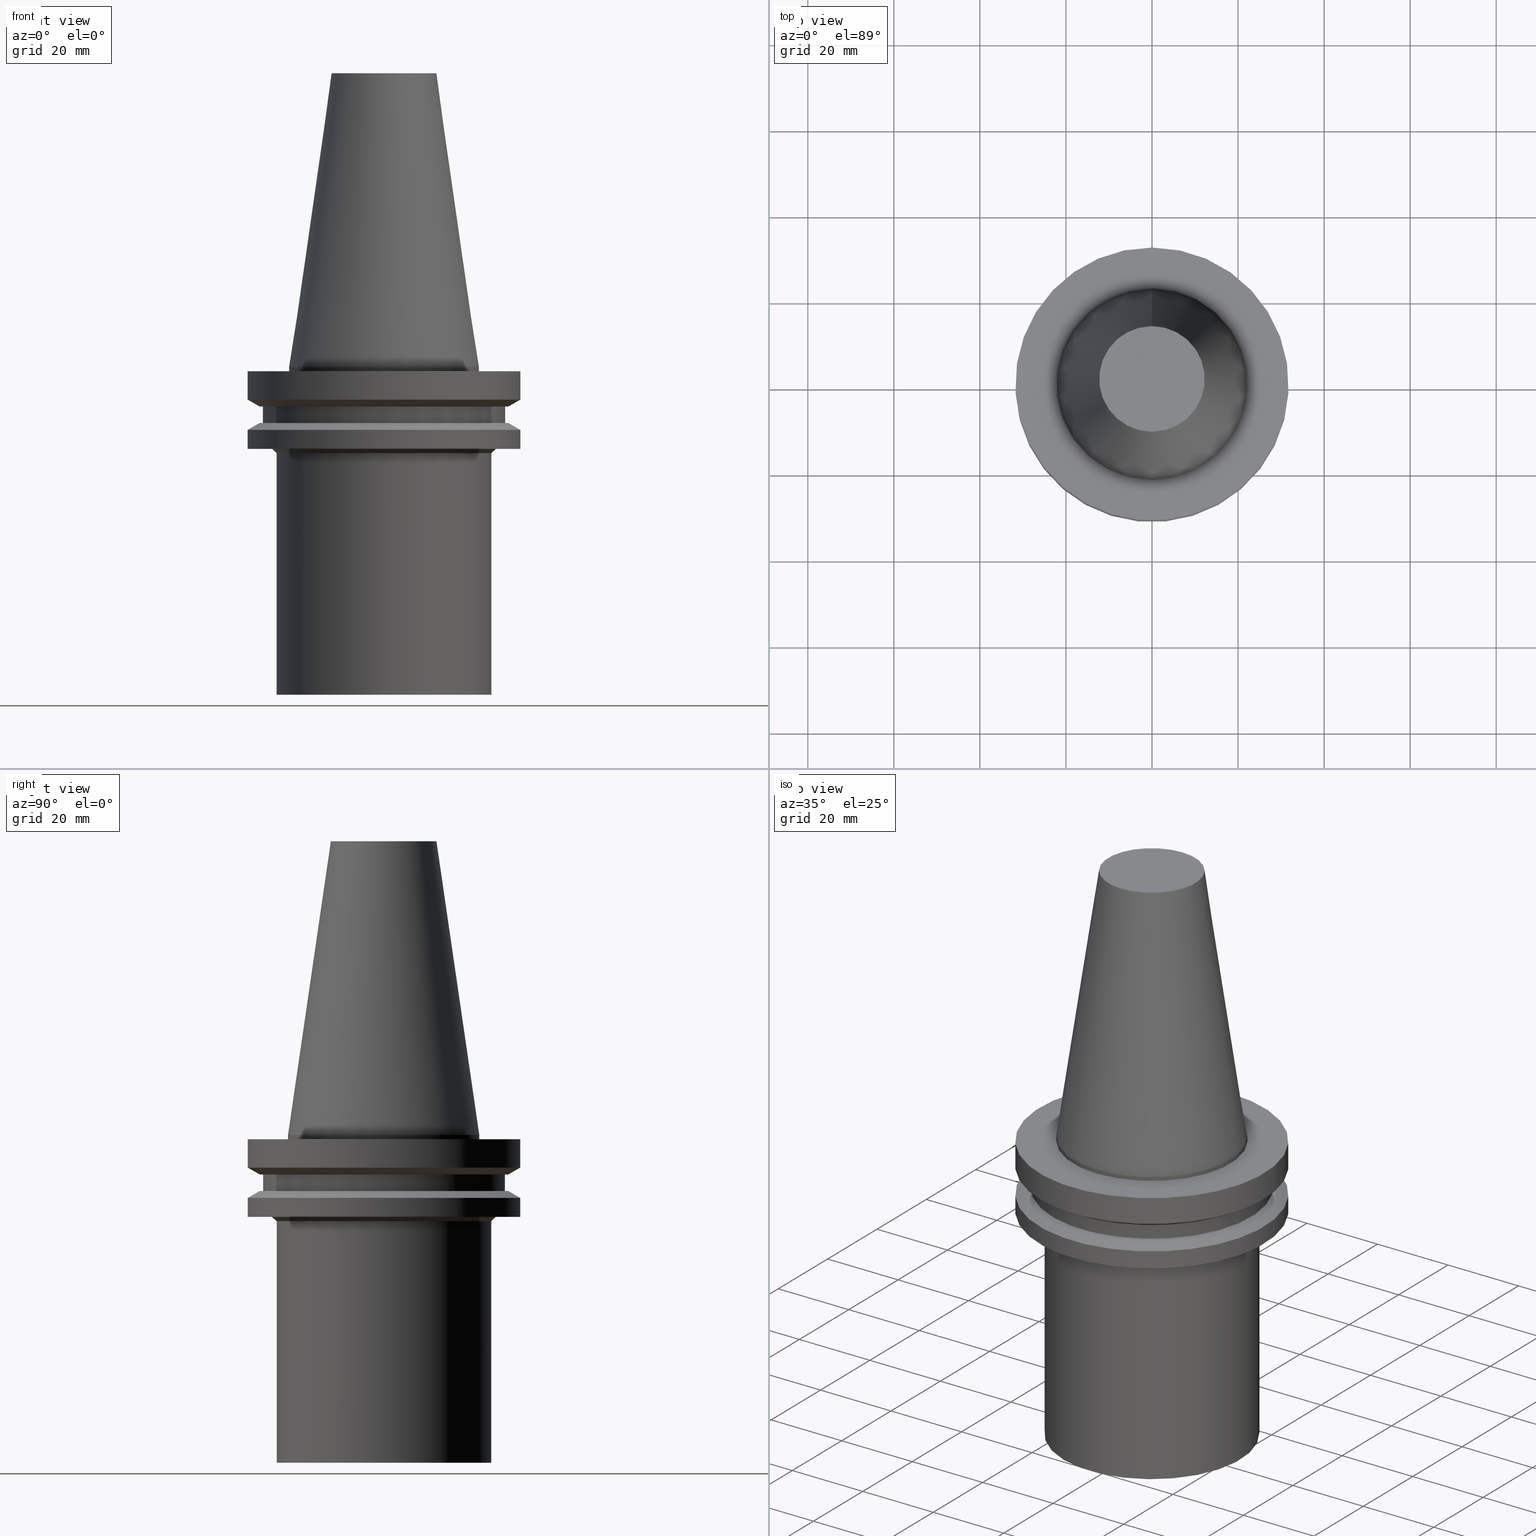
[diagram: canonical four-view strip — front | top / right | iso, engineering-drawing reading convention]
A machine part, canonical four-view strip (front | top / right | iso — engineering-drawing reading convention). The complete STEP part file that produces these views, byte-faithful:
ISO-10303-21;
HEADER;
FILE_DESCRIPTION((''),'1');
FILE_NAME('V:/90_\X2\53D65F9730C730FC30BF\X0\/00_\X2\6DE18DEF30C730FC30BF\X0\/ALL/BCV-BKUS\X2\FF76FF80FF9BFF78FF9E752852A05DE556F3\X0\201801/BCV40Y-CAPTO/BCV40Y-C5-3.stp','2018-02-01T01:54:02',(''),(''),'Spatial Interop R21 SP3','Kubotek KeyCreator 2011 V10.0.2 (22737)',' ');
FILE_SCHEMA(('automotive_design'));
ENDSEC;
DATA;
#1=MECHANICAL_DESIGN_GEOMETRIC_PRESENTATION_REPRESENTATION(' ',(#10,#11,#12,#13,#14,#15,#16,#17,#18,#19,#20,#21,#22,#23,#24,#25,#26,#27,#28,#29,#30,#31,#32,#33,#34,#35,#36,#37,#38,#39),#6);
#2=PRODUCT_DEFINITION_CONTEXT('',#40,'design');
#3=APPLICATION_PROTOCOL_DEFINITION('INTERNATIONAL STANDARD','automotive_design',1994,#40);
#4=PRODUCT_CATEGORY_RELATIONSHIP('NONE','NONE',#41,#42);
#5=SHAPE_DEFINITION_REPRESENTATION(#43,#44);
#6= (GEOMETRIC_REPRESENTATION_CONTEXT(3)GLOBAL_UNCERTAINTY_ASSIGNED_CONTEXT((#47))GLOBAL_UNIT_ASSIGNED_CONTEXT((#49,#50,#51))REPRESENTATION_CONTEXT('NONE','WORKSPACE'));
#10=STYLED_ITEM('',(#53),#54);
#11=STYLED_ITEM('',(#55),#56);
#12=STYLED_ITEM('',(#57),#58);
#13=STYLED_ITEM('',(#59,#60),#61);
#14=STYLED_ITEM('',(#62,#63),#64);
#15=STYLED_ITEM('',(#65,#66),#67);
#16=STYLED_ITEM('',(#68),#69);
#17=STYLED_ITEM('',(#70),#71);
#18=STYLED_ITEM('',(#72,#73),#74);
#19=STYLED_ITEM('',(#75,#76),#77);
#20=STYLED_ITEM('',(#78),#79);
#21=STYLED_ITEM('',(#80,#81),#82);
#22=STYLED_ITEM('',(#83,#84),#85);
#23=STYLED_ITEM('',(#86,#87),#88);
#24=STYLED_ITEM('',(#89,#90),#91);
#25=STYLED_ITEM('',(#92,#93),#94);
#26=STYLED_ITEM('',(#95),#96);
#27=STYLED_ITEM('',(#97,#98),#99);
#28=STYLED_ITEM('',(#100),#101);
#29=STYLED_ITEM('',(#102,#103),#104);
#30=STYLED_ITEM('',(#105,#106),#107);
#31=STYLED_ITEM('',(#108,#109),#110);
#32=STYLED_ITEM('',(#111),#112);
#33=STYLED_ITEM('',(#113),#114);
#34=STYLED_ITEM('',(#115),#116);
#35=STYLED_ITEM('',(#117,#118),#119);
#36=STYLED_ITEM('',(#120),#121);
#37=STYLED_ITEM('',(#122),#123);
#38=STYLED_ITEM('',(#124),#125);
#39=STYLED_ITEM('',(#126,#127),#128);
#40=APPLICATION_CONTEXT(' ');
#41=PRODUCT_CATEGORY('part','NONE');
#42=PRODUCT_RELATED_PRODUCT_CATEGORY('detail',' ',(#129));
#43=PRODUCT_DEFINITION_SHAPE('NONE','NONE',#130);
#44=ADVANCED_BREP_SHAPE_REPRESENTATION('Unnamed[1]',(#91,#131),#6);
#47=UNCERTAINTY_MEASURE_WITH_UNIT(LENGTH_MEASURE(1.0E-006),#49,'','');
#49= (CONVERSION_BASED_UNIT('MILLIMETRE',#134)LENGTH_UNIT()NAMED_UNIT(#137));
#50= (NAMED_UNIT(#139)PLANE_ANGLE_UNIT()SI_UNIT($,.RADIAN.));
#51= (NAMED_UNIT(#139)SOLID_ANGLE_UNIT()SI_UNIT($,.STERADIAN.));
#53=PRESENTATION_STYLE_ASSIGNMENT((#145));
#54=EDGE_CURVE('Unnamed[1]',#146,#146,#147,.T.);
#55=PRESENTATION_STYLE_ASSIGNMENT((#148));
#56=EDGE_CURVE('Unnamed[1]',#149,#149,#150,.T.);
#57=PRESENTATION_STYLE_ASSIGNMENT((#151));
#58=EDGE_CURVE('Unnamed[1]',#152,#152,#153,.T.);
#59=PRESENTATION_STYLE_ASSIGNMENT((#154));
#60=PRESENTATION_STYLE_ASSIGNMENT((#155));
#61=ADVANCED_FACE('Unnamed[1]',(#156,#157),#158,.T.);
#62=PRESENTATION_STYLE_ASSIGNMENT((#159));
#63=PRESENTATION_STYLE_ASSIGNMENT((#160));
#64=ADVANCED_FACE('Unnamed[1]',(#161,#162),#163,.T.);
#65=PRESENTATION_STYLE_ASSIGNMENT((#164));
#66=PRESENTATION_STYLE_ASSIGNMENT((#165));
#67=ADVANCED_FACE('Unnamed[1]',(#166,#167),#168,.T.);
#68=PRESENTATION_STYLE_ASSIGNMENT((#169));
#69=EDGE_CURVE('Unnamed[1]',#170,#170,#171,.T.);
#70=PRESENTATION_STYLE_ASSIGNMENT((#172));
#71=EDGE_CURVE('Unnamed[1]',#173,#173,#174,.T.);
#72=PRESENTATION_STYLE_ASSIGNMENT((#175));
#73=PRESENTATION_STYLE_ASSIGNMENT((#176));
#74=ADVANCED_FACE('Unnamed[1]',(#177,#178),#179,.T.);
#75=PRESENTATION_STYLE_ASSIGNMENT((#180));
#76=PRESENTATION_STYLE_ASSIGNMENT((#181));
#77=ADVANCED_FACE('Unnamed[1]',(#182),#183,.T.);
#78=PRESENTATION_STYLE_ASSIGNMENT((#184));
#79=EDGE_CURVE('Unnamed[1]',#185,#185,#186,.T.);
#80=PRESENTATION_STYLE_ASSIGNMENT((#187));
#81=PRESENTATION_STYLE_ASSIGNMENT((#188));
#82=ADVANCED_FACE('Unnamed[1]',(#189,#190),#191,.T.);
#83=PRESENTATION_STYLE_ASSIGNMENT((#192));
#84=PRESENTATION_STYLE_ASSIGNMENT((#193));
#85=ADVANCED_FACE('Unnamed[1]',(#194,#195),#196,.T.);
#86=PRESENTATION_STYLE_ASSIGNMENT((#197));
#87=PRESENTATION_STYLE_ASSIGNMENT((#198));
#88=ADVANCED_FACE('Unnamed[1]',(#199,#200),#201,.T.);
#89=PRESENTATION_STYLE_ASSIGNMENT((#202));
#90=PRESENTATION_STYLE_ASSIGNMENT((#203));
#91=MANIFOLD_SOLID_BREP('Unnamed[1]',#204);
#92=PRESENTATION_STYLE_ASSIGNMENT((#205));
#93=PRESENTATION_STYLE_ASSIGNMENT((#206));
#94=ADVANCED_FACE('Unnamed[1]',(#207,#208),#209,.T.);
#95=PRESENTATION_STYLE_ASSIGNMENT((#210));
#96=EDGE_CURVE('Unnamed[1]',#211,#211,#212,.T.);
#97=PRESENTATION_STYLE_ASSIGNMENT((#213));
#98=PRESENTATION_STYLE_ASSIGNMENT((#214));
#99=ADVANCED_FACE('Unnamed[1]',(#215,#216),#217,.T.);
#100=PRESENTATION_STYLE_ASSIGNMENT((#218));
#101=EDGE_CURVE('Unnamed[1]',#219,#219,#220,.T.);
#102=PRESENTATION_STYLE_ASSIGNMENT((#221));
#103=PRESENTATION_STYLE_ASSIGNMENT((#222));
#104=ADVANCED_FACE('Unnamed[1]',(#223,#224),#225,.T.);
#105=PRESENTATION_STYLE_ASSIGNMENT((#226));
#106=PRESENTATION_STYLE_ASSIGNMENT((#227));
#107=ADVANCED_FACE('Unnamed[1]',(#228),#229,.T.);
#108=PRESENTATION_STYLE_ASSIGNMENT((#230));
#109=PRESENTATION_STYLE_ASSIGNMENT((#231));
#110=ADVANCED_FACE('Unnamed[1]',(#232,#233),#234,.T.);
#111=PRESENTATION_STYLE_ASSIGNMENT((#235));
#112=EDGE_CURVE('Unnamed[1]',#236,#236,#237,.T.);
#113=PRESENTATION_STYLE_ASSIGNMENT((#238));
#114=EDGE_CURVE('Unnamed[1]',#239,#239,#240,.T.);
#115=PRESENTATION_STYLE_ASSIGNMENT((#241));
#116=EDGE_CURVE('Unnamed[1]',#242,#242,#243,.T.);
#117=PRESENTATION_STYLE_ASSIGNMENT((#244));
#118=PRESENTATION_STYLE_ASSIGNMENT((#245));
#119=ADVANCED_FACE('Unnamed[1]',(#246,#247),#248,.T.);
#120=PRESENTATION_STYLE_ASSIGNMENT((#249));
#121=EDGE_CURVE('Unnamed[1]',#250,#250,#251,.T.);
#122=PRESENTATION_STYLE_ASSIGNMENT((#252));
#123=EDGE_CURVE('Unnamed[1]',#253,#253,#254,.T.);
#124=PRESENTATION_STYLE_ASSIGNMENT((#255));
#125=EDGE_CURVE('Unnamed[1]',#256,#256,#257,.T.);
#126=PRESENTATION_STYLE_ASSIGNMENT((#258));
#127=PRESENTATION_STYLE_ASSIGNMENT((#259));
#128=ADVANCED_FACE('Unnamed[1]',(#260,#261),#262,.T.);
#129=PRODUCT('Unnamed[1]','Unnamed[1]','PART-Unnamed[1]-DESC',(#263));
#130=PRODUCT_DEFINITION('NONE','NONE',#264,#2);
#131=AXIS2_PLACEMENT_3D('',#265,#266,#267);
#134=LENGTH_MEASURE_WITH_UNIT(LENGTH_MEASURE(1.0),#268);
#137=DIMENSIONAL_EXPONENTS(1.0,0.0,0.0,0.0,0.0,0.0,0.0);
#139=DIMENSIONAL_EXPONENTS(0.0,0.0,0.0,0.0,0.0,0.0,0.0);
#145=CURVE_STYLE('',#269,POSITIVE_LENGTH_MEASURE(1000.0),#270);
#146=VERTEX_POINT('',#271);
#147=CIRCLE('',#272,28.1799999999999);
#148=CURVE_STYLE('',#273,POSITIVE_LENGTH_MEASURE(1000.0),#274);
#149=VERTEX_POINT('',#275);
#150=CIRCLE('',#276,31.7499999999999);
#151=CURVE_STYLE('',#277,POSITIVE_LENGTH_MEASURE(1000.0),#278);
#152=VERTEX_POINT('',#279);
#153=CIRCLE('',#280,22.225);
#154=SURFACE_STYLE_USAGE(.BOTH.,#281);
#155=CURVE_STYLE('',#282,POSITIVE_LENGTH_MEASURE(1000.0),#283);
#156=FACE_BOUND('',#284,.T.);
#157=FACE_BOUND('',#285,.T.);
#158=CYLINDRICAL_SURFACE('',#286,28.1799999999999);
#159=SURFACE_STYLE_USAGE(.BOTH.,#287);
#160=CURVE_STYLE('',#288,POSITIVE_LENGTH_MEASURE(1000.0),#289);
#161=FACE_BOUND('',#290,.T.);
#162=FACE_BOUND('',#291,.T.);
#163=CONICAL_SURFACE('',#292,30.3587792269259,1.0471975511966);
#164=SURFACE_STYLE_USAGE(.BOTH.,#293);
#165=CURVE_STYLE('',#294,POSITIVE_LENGTH_MEASURE(1000.0),#295);
#166=FACE_BOUND('',#296,.T.);
#167=FACE_BOUND('',#297,.T.);
#168=CYLINDRICAL_SURFACE('',#298,25.0);
#169=CURVE_STYLE('',#299,POSITIVE_LENGTH_MEASURE(1000.0),#300);
#170=VERTEX_POINT('',#301);
#171=CIRCLE('',#302,31.7499999999999);
#172=CURVE_STYLE('',#303,POSITIVE_LENGTH_MEASURE(1000.0),#304);
#173=VERTEX_POINT('',#305);
#174=CIRCLE('',#306,26.0);
#175=SURFACE_STYLE_USAGE(.BOTH.,#307);
#176=CURVE_STYLE('',#308,POSITIVE_LENGTH_MEASURE(1000.0),#309);
#177=FACE_BOUND('',#310,.T.);
#178=FACE_OUTER_BOUND('',#311,.T.);
#179=PLANE('',#312);
#180=SURFACE_STYLE_USAGE(.BOTH.,#313);
#181=CURVE_STYLE('',#314,POSITIVE_LENGTH_MEASURE(1000.0),#315);
#182=FACE_OUTER_BOUND('',#316,.T.);
#183=PLANE('',#317);
#184=CURVE_STYLE('',#318,POSITIVE_LENGTH_MEASURE(1000.0),#319);
#185=VERTEX_POINT('',#320);
#186=CIRCLE('',#321,28.1799999999999);
#187=SURFACE_STYLE_USAGE(.BOTH.,#322);
#188=CURVE_STYLE('',#323,POSITIVE_LENGTH_MEASURE(1000.0),#324);
#189=FACE_BOUND('',#325,.T.);
#190=FACE_BOUND('',#326,.T.);
#191=CONICAL_SURFACE('',#327,17.2484375,0.144812498238938);
#192=SURFACE_STYLE_USAGE(.BOTH.,#328);
#193=CURVE_STYLE('',#329,POSITIVE_LENGTH_MEASURE(1000.0),#330);
#194=FACE_BOUND('',#331,.T.);
#195=FACE_OUTER_BOUND('',#332,.T.);
#196=PLANE('',#333);
#197=SURFACE_STYLE_USAGE(.BOTH.,#334);
#198=CURVE_STYLE('',#335,POSITIVE_LENGTH_MEASURE(1000.0),#336);
#199=FACE_OUTER_BOUND('',#337,.T.);
#200=FACE_BOUND('',#338,.T.);
#201=PLANE('',#339);
#202=SURFACE_STYLE_USAGE(.BOTH.,#340);
#203=CURVE_STYLE('',#341,POSITIVE_LENGTH_MEASURE(1000.0),#342);
#204=CLOSED_SHELL('',(#107,#82,#110,#88,#104,#119,#74,#61,#99,#64,#94,#85,#128,#67,#77));
#205=SURFACE_STYLE_USAGE(.BOTH.,#343);
#206=CURVE_STYLE('',#344,POSITIVE_LENGTH_MEASURE(1000.0),#345);
#207=FACE_BOUND('',#346,.T.);
#208=FACE_BOUND('',#347,.T.);
#209=CYLINDRICAL_SURFACE('',#348,31.7499999999999);
#210=CURVE_STYLE('',#349,POSITIVE_LENGTH_MEASURE(1000.0),#350);
#211=VERTEX_POINT('',#351);
#212=CIRCLE('',#352,28.9675584538521);
#213=SURFACE_STYLE_USAGE(.BOTH.,#353);
#214=CURVE_STYLE('',#354,POSITIVE_LENGTH_MEASURE(1000.0),#355);
#215=FACE_OUTER_BOUND('',#356,.T.);
#216=FACE_BOUND('',#357,.T.);
#217=PLANE('',#358);
#218=CURVE_STYLE('',#359,POSITIVE_LENGTH_MEASURE(1000.0),#360);
#219=VERTEX_POINT('',#361);
#220=CIRCLE('',#362,12.271875);
#221=SURFACE_STYLE_USAGE(.BOTH.,#363);
#222=CURVE_STYLE('',#364,POSITIVE_LENGTH_MEASURE(1000.0),#365);
#223=FACE_BOUND('',#366,.T.);
#224=FACE_BOUND('',#367,.T.);
#225=CYLINDRICAL_SURFACE('',#368,31.7499999999999);
#226=SURFACE_STYLE_USAGE(.BOTH.,#369);
#227=CURVE_STYLE('',#370,POSITIVE_LENGTH_MEASURE(1000.0),#371);
#228=FACE_OUTER_BOUND('',#372,.T.);
#229=PLANE('',#373);
#230=SURFACE_STYLE_USAGE(.BOTH.,#374);
#231=CURVE_STYLE('',#375,POSITIVE_LENGTH_MEASURE(1000.0),#376);
#232=FACE_BOUND('',#377,.T.);
#233=FACE_BOUND('',#378,.T.);
#234=CYLINDRICAL_SURFACE('',#379,22.225);
#235=CURVE_STYLE('',#380,POSITIVE_LENGTH_MEASURE(1000.0),#381);
#236=VERTEX_POINT('',#382);
#237=CIRCLE('',#383,22.225);
#238=CURVE_STYLE('',#384,POSITIVE_LENGTH_MEASURE(1000.0),#385);
#239=VERTEX_POINT('',#386);
#240=CIRCLE('',#387,31.7499999999999);
#241=CURVE_STYLE('',#388,POSITIVE_LENGTH_MEASURE(1000.0),#389);
#242=VERTEX_POINT('',#390);
#243=CIRCLE('',#391,31.7499999999999);
#244=SURFACE_STYLE_USAGE(.BOTH.,#392);
#245=CURVE_STYLE('',#393,POSITIVE_LENGTH_MEASURE(1000.0),#394);
#246=FACE_BOUND('',#395,.T.);
#247=FACE_BOUND('',#396,.T.);
#248=CONICAL_SURFACE('',#397,30.358779226926,1.04719755119658);
#249=CURVE_STYLE('',#398,POSITIVE_LENGTH_MEASURE(1000.0),#399);
#250=VERTEX_POINT('',#400);
#251=CIRCLE('',#401,25.0);
#252=CURVE_STYLE('',#402,POSITIVE_LENGTH_MEASURE(1000.0),#403);
#253=VERTEX_POINT('',#404);
#254=CIRCLE('',#405,24.9999999999999);
#255=CURVE_STYLE('',#406,POSITIVE_LENGTH_MEASURE(1000.0),#407);
#256=VERTEX_POINT('',#408);
#257=CIRCLE('',#409,28.9675584538519);
#258=SURFACE_STYLE_USAGE(.BOTH.,#410);
#259=CURVE_STYLE('',#411,POSITIVE_LENGTH_MEASURE(1000.0),#412);
#260=FACE_BOUND('',#413,.T.);
#261=FACE_BOUND('',#414,.T.);
#262=CONICAL_SURFACE('',#415,25.5,0.785398163397442);
#263=PRODUCT_CONTEXT('',#40,'mechanical');
#264=PRODUCT_DEFINITION_FORMATION_WITH_SPECIFIED_SOURCE(' ','NONE',#129,.NOT_KNOWN.);
#265=CARTESIAN_POINT('',(0.0,0.0,0.0));
#266=DIRECTION('',(0.0,0.0,1.0));
#267=DIRECTION('',(1.0,0.0,0.0));
#268= (NAMED_UNIT(#137)LENGTH_UNIT()SI_UNIT(.MILLI.,.METRE.));
#269=DRAUGHTING_PRE_DEFINED_CURVE_FONT('continuous');
#270=COLOUR_RGB('',0.0,1.0,0.0);
#271=CARTESIAN_POINT('',(5.63337527607771E-016,28.18,-9.19999999999981));
#272=AXIS2_PLACEMENT_3D('',#417,#418,#419);
#273=DRAUGHTING_PRE_DEFINED_CURVE_FONT('continuous');
#274=COLOUR_RGB('',0.0,1.0,0.0);
#275=CARTESIAN_POINT('',(1.16647607618784E-015,31.7499999999999,-19.0499999999998));
#276=AXIS2_PLACEMENT_3D('',#420,#421,#422);
#277=DRAUGHTING_PRE_DEFINED_CURVE_FONT('continuous');
#278=COLOUR_RGB('',0.0,1.0,0.0);
#279=CARTESIAN_POINT('',(-7.23525537133772E-030,22.225,1.16408615232721E-013));
#280=AXIS2_PLACEMENT_3D('',#423,#424,#425);
#281=SURFACE_SIDE_STYLE('',(#426));
#282=DRAUGHTING_PRE_DEFINED_CURVE_FONT('continuous');
#283=COLOUR_RGB('',0.0,1.0,0.0);
#284=EDGE_LOOP('',(#427));
#285=EDGE_LOOP('',(#428));
#286=AXIS2_PLACEMENT_3D('',#429,#430,#431);
#287=SURFACE_SIDE_STYLE('',(#432));
#288=DRAUGHTING_PRE_DEFINED_CURVE_FONT('continuous');
#289=COLOUR_RGB('',0.0,1.0,0.0);
#290=EDGE_LOOP('',(#433));
#291=EDGE_LOOP('',(#434));
#292=AXIS2_PLACEMENT_3D('',#435,#436,#437);
#293=SURFACE_SIDE_STYLE('',(#438));
#294=DRAUGHTING_PRE_DEFINED_CURVE_FONT('continuous');
#295=COLOUR_RGB('',0.0,1.0,0.0);
#296=EDGE_LOOP('',(#439));
#297=EDGE_LOOP('',(#440));
#298=AXIS2_PLACEMENT_3D('',#441,#442,#443);
#299=DRAUGHTING_PRE_DEFINED_CURVE_FONT('continuous');
#300=COLOUR_RGB('',0.0,1.0,0.0);
#301=CARTESIAN_POINT('',(4.64971240706304E-016,31.7499999999999,-7.59355662432687));
#302=AXIS2_PLACEMENT_3D('',#444,#445,#446);
#303=DRAUGHTING_PRE_DEFINED_CURVE_FONT('continuous');
#304=COLOUR_RGB('',0.0,1.0,0.0);
#305=CARTESIAN_POINT('',(1.16647607618784E-015,26.0000000000001,-19.0499999999998));
#306=AXIS2_PLACEMENT_3D('',#447,#448,#449);
#307=SURFACE_SIDE_STYLE('',(#450));
#308=DRAUGHTING_PRE_DEFINED_CURVE_FONT('continuous');
#309=COLOUR_RGB('',0.0,1.0,0.0);
#310=EDGE_LOOP('',(#451));
#311=EDGE_LOOP('',(#452));
#312=AXIS2_PLACEMENT_3D('',#453,#454,#455);
#313=SURFACE_SIDE_STYLE('',(#456));
#314=DRAUGHTING_PRE_DEFINED_CURVE_FONT('continuous');
#315=COLOUR_RGB('',0.0,1.0,0.0);
#316=EDGE_LOOP('',(#457));
#317=AXIS2_PLACEMENT_3D('',#458,#459,#460);
#318=DRAUGHTING_PRE_DEFINED_CURVE_FONT('continuous');
#319=COLOUR_RGB('',0.0,1.0,0.0);
#320=CARTESIAN_POINT('',(7.98469713044065E-016,28.18,-13.0399999999998));
#321=AXIS2_PLACEMENT_3D('',#461,#462,#463);
#322=SURFACE_SIDE_STYLE('',(#464));
#323=DRAUGHTING_PRE_DEFINED_CURVE_FONT('continuous');
#324=COLOUR_RGB('',0.0,1.0,0.0);
#325=EDGE_LOOP('',(#465));
#326=EDGE_LOOP('',(#466));
#327=AXIS2_PLACEMENT_3D('',#467,#468,#469);
#328=SURFACE_SIDE_STYLE('',(#470));
#329=DRAUGHTING_PRE_DEFINED_CURVE_FONT('continuous');
#330=COLOUR_RGB('',0.0,1.0,0.0);
#331=EDGE_LOOP('',(#471));
#332=EDGE_LOOP('',(#472));
#333=AXIS2_PLACEMENT_3D('',#473,#474,#475);
#334=SURFACE_SIDE_STYLE('',(#476));
#335=DRAUGHTING_PRE_DEFINED_CURVE_FONT('continuous');
#336=COLOUR_RGB('',0.0,1.0,0.0);
#337=EDGE_LOOP('',(#477));
#338=EDGE_LOOP('',(#478));
#339=AXIS2_PLACEMENT_3D('',#479,#480,#481);
#340=SURFACE_SIDE_STYLE('',(#482));
#341=DRAUGHTING_PRE_DEFINED_CURVE_FONT('continuous');
#342=COLOUR_RGB('',0.0,1.0,0.0);
#343=SURFACE_SIDE_STYLE('',(#483));
#344=DRAUGHTING_PRE_DEFINED_CURVE_FONT('continuous');
#345=COLOUR_RGB('',0.0,1.0,0.0);
#346=EDGE_LOOP('',(#484));
#347=EDGE_LOOP('',(#485));
#348=AXIS2_PLACEMENT_3D('',#486,#487,#488);
#349=DRAUGHTING_PRE_DEFINED_CURVE_FONT('continuous');
#350=COLOUR_RGB('',0.0,1.0,0.0);
#351=CARTESIAN_POINT('',(5.63337527607771E-016,28.9675584538521,-9.19999999999981));
#352=AXIS2_PLACEMENT_3D('',#489,#490,#491);
#353=SURFACE_SIDE_STYLE('',(#492));
#354=DRAUGHTING_PRE_DEFINED_CURVE_FONT('continuous');
#355=COLOUR_RGB('',0.0,1.0,0.0);
#356=EDGE_LOOP('',(#493));
#357=EDGE_LOOP('',(#494));
#358=AXIS2_PLACEMENT_3D('',#495,#496,#497);
#359=DRAUGHTING_PRE_DEFINED_CURVE_FONT('continuous');
#360=COLOUR_RGB('',0.0,1.0,0.0);
#361=CARTESIAN_POINT('',(-4.17910720209035E-015,12.271875,68.2500000000002));
#362=AXIS2_PLACEMENT_3D('',#498,#499,#500);
#363=SURFACE_SIDE_STYLE('',(#501));
#364=DRAUGHTING_PRE_DEFINED_CURVE_FONT('continuous');
#365=COLOUR_RGB('',0.0,1.0,0.0);
#366=EDGE_LOOP('',(#502));
#367=EDGE_LOOP('',(#503));
#368=AXIS2_PLACEMENT_3D('',#504,#505,#506);
#369=SURFACE_SIDE_STYLE('',(#507));
#370=DRAUGHTING_PRE_DEFINED_CURVE_FONT('continuous');
#371=COLOUR_RGB('',0.0,1.0,0.0);
#372=EDGE_LOOP('',(#508));
#373=AXIS2_PLACEMENT_3D('',#509,#510,#511);
#374=SURFACE_SIDE_STYLE('',(#512));
#375=DRAUGHTING_PRE_DEFINED_CURVE_FONT('continuous');
#376=COLOUR_RGB('',0.0,1.0,0.0);
#377=EDGE_LOOP('',(#513));
#378=EDGE_LOOP('',(#514));
#379=AXIS2_PLACEMENT_3D('',#515,#516,#517);
#380=DRAUGHTING_PRE_DEFINED_CURVE_FONT('continuous');
#381=COLOUR_RGB('',0.0,1.0,0.0);
#382=CARTESIAN_POINT('',(6.12323399572838E-017,22.225,-0.999999999998633));
#383=AXIS2_PLACEMENT_3D('',#518,#519,#520);
#384=DRAUGHTING_PRE_DEFINED_CURVE_FONT('continuous');
#385=COLOUR_RGB('',0.0,1.0,0.0);
#386=CARTESIAN_POINT('',(6.12323399572837E-017,31.7499999999999,-0.999999999998632));
#387=AXIS2_PLACEMENT_3D('',#521,#522,#523);
#388=DRAUGHTING_PRE_DEFINED_CURVE_FONT('continuous');
#389=COLOUR_RGB('',0.0,1.0,0.0);
#390=CARTESIAN_POINT('',(8.96835999945531E-016,31.7499999999999,-14.6464433756728));
#391=AXIS2_PLACEMENT_3D('',#524,#525,#526);
#392=SURFACE_SIDE_STYLE('',(#527));
#393=DRAUGHTING_PRE_DEFINED_CURVE_FONT('continuous');
#394=COLOUR_RGB('',0.0,1.0,0.0);
#395=EDGE_LOOP('',(#528));
#396=EDGE_LOOP('',(#529));
#397=AXIS2_PLACEMENT_3D('',#530,#531,#532);
#398=DRAUGHTING_PRE_DEFINED_CURVE_FONT('continuous');
#399=COLOUR_RGB('',0.0,1.0,0.0);
#400=CARTESIAN_POINT('',(1.22770841614521E-015,25.0000000000001,-20.0499999999999));
#401=AXIS2_PLACEMENT_3D('',#533,#534,#535);
#402=DRAUGHTING_PRE_DEFINED_CURVE_FONT('continuous');
#403=COLOUR_RGB('',0.0,1.0,0.0);
#404=CARTESIAN_POINT('',(4.66590430475142E-015,25.0,-76.2));
#405=AXIS2_PLACEMENT_3D('',#536,#537,#538);
#406=DRAUGHTING_PRE_DEFINED_CURVE_FONT('continuous');
#407=COLOUR_RGB('',0.0,1.0,0.0);
#408=CARTESIAN_POINT('',(7.98469713044065E-016,28.967558453852,-13.0399999999998));
#409=AXIS2_PLACEMENT_3D('',#539,#540,#541);
#410=SURFACE_SIDE_STYLE('',(#542));
#411=DRAUGHTING_PRE_DEFINED_CURVE_FONT('continuous');
#412=COLOUR_RGB('',0.0,1.0,0.0);
#413=EDGE_LOOP('',(#543));
#414=EDGE_LOOP('',(#544));
#415=AXIS2_PLACEMENT_3D('',#545,#546,#547);
#417=CARTESIAN_POINT('',(5.63337527607772E-016,3.36787181748648E-015,-9.19999999999983));
#418=DIRECTION('',(6.12323399573677E-017,8.51860445124991E-016,-1.0));
#419=DIRECTION('',(-5.69885611028965E-032,1.0,8.51860445124991E-016));
#420=CARTESIAN_POINT('',(1.16647607618785E-015,1.17586972019679E-014,-19.0499999999999));
#421=DIRECTION('',(6.12323399573677E-017,8.51860445124987E-016,-1.0));
#422=DIRECTION('',(-5.69885611028992E-032,1.0,8.51860445124987E-016));
#423=CARTESIAN_POINT('',(-6.09114720904207E-030,-4.4692442776636E-015,9.9475983006414E-014));
#424=DIRECTION('',(6.12323399573677E-017,8.51860445125044E-016,-1.0));
#425=DIRECTION('',(-5.69885611028967E-032,1.0,8.51860445125044E-016));
#426=SURFACE_STYLE_FILL_AREA(#548);
#427=ORIENTED_EDGE('',*,*,#79,.F.);
#428=ORIENTED_EDGE('',*,*,#54,.T.);
#429=CARTESIAN_POINT('',(6.80903620325919E-016,5.00344387212652E-015,-11.1199999999998));
#430=DIRECTION('',(6.12323399573677E-017,8.51860445124991E-016,-1.0));
#431=DIRECTION('',(-5.69885611028965E-032,1.0,8.51860445124991E-016));
#432=SURFACE_STYLE_FILL_AREA(#549);
#433=ORIENTED_EDGE('',*,*,#116,.F.);
#434=ORIENTED_EDGE('',*,*,#125,.T.);
#435=CARTESIAN_POINT('',(8.476528564948E-016,7.32324871130101E-015,-13.8432216878363));
#436=DIRECTION('',(6.12323399573677E-017,8.51860445125027E-016,-1.0));
#437=DIRECTION('',(-5.69885611028985E-032,1.0,8.51860445125027E-016));
#438=SURFACE_STYLE_FILL_AREA(#550);
#439=ORIENTED_EDGE('',*,*,#123,.F.);
#440=ORIENTED_EDGE('',*,*,#121,.T.);
#441=CARTESIAN_POINT('',(2.94680636044832E-015,3.65265396439778E-014,-48.1249999999999));
#442=DIRECTION('',(6.12323399573676E-017,8.51860445125046E-016,-1.0));
#443=DIRECTION('',(-5.69885611028989E-032,1.0,8.51860445125046E-016));
#444=CARTESIAN_POINT('',(4.64971240706306E-016,1.99940624841761E-015,-7.59355662432691));
#445=DIRECTION('',(6.12323399573677E-017,8.51860445124986E-016,-1.0));
#446=DIRECTION('',(-5.69885611028992E-032,1.0,8.51860445124986E-016));
#447=CARTESIAN_POINT('',(1.16647607618785E-015,1.17586972019679E-014,-19.0499999999999));
#448=DIRECTION('',(6.12323399573677E-017,8.51860445124989E-016,-1.0));
#449=DIRECTION('',(-5.69885611028976E-032,1.0,8.51860445124989E-016));
#450=SURFACE_STYLE_FILL_AREA(#551);
#451=ORIENTED_EDGE('',*,*,#54,.F.);
#452=ORIENTED_EDGE('',*,*,#96,.T.);
#453=CARTESIAN_POINT('',(5.63337527607771E-016,28.573779226926,-9.19999999999981));
#454=DIRECTION('',(6.12323399573677E-017,1.22464679914735E-016,-1.0));
#455=DIRECTION('',(-1.23259516440783E-032,1.0,1.22464679914735E-016));
#456=SURFACE_STYLE_FILL_AREA(#552);
#457=ORIENTED_EDGE('',*,*,#123,.T.);
#458=CARTESIAN_POINT('',(4.66590430475142E-015,12.5,-76.2));
#459=DIRECTION('',(6.12323399573677E-017,1.22464679914735E-016,-1.0));
#460=DIRECTION('',(-1.23259516440783E-032,1.0,1.22464679914735E-016));
#461=CARTESIAN_POINT('',(7.98469713044066E-016,6.63901592676657E-015,-13.0399999999999));
#462=DIRECTION('',(6.12323399573677E-017,8.51860445124991E-016,-1.0));
#463=DIRECTION('',(-5.69885611028965E-032,1.0,8.51860445124991E-016));
#464=SURFACE_STYLE_FILL_AREA(#553);
#465=ORIENTED_EDGE('',*,*,#58,.F.);
#466=ORIENTED_EDGE('',*,*,#101,.T.);
#467=CARTESIAN_POINT('',(-2.08955360104518E-015,-3.35389819675548E-014,34.1250000000001));
#468=DIRECTION('',(6.12323399573677E-017,8.51860445125001E-016,-1.0));
#469=DIRECTION('',(-5.69885611028945E-032,1.0,8.51860445125001E-016));
#470=SURFACE_STYLE_FILL_AREA(#554);
#471=ORIENTED_EDGE('',*,*,#71,.F.);
#472=ORIENTED_EDGE('',*,*,#56,.T.);
#473=CARTESIAN_POINT('',(1.16647607618784E-015,28.875,-19.0499999999998));
#474=DIRECTION('',(6.12323399573677E-017,1.22464679914735E-016,-1.0));
#475=DIRECTION('',(-1.23259516440783E-032,1.0,1.22464679914735E-016));
#476=SURFACE_STYLE_FILL_AREA(#555);
#477=ORIENTED_EDGE('',*,*,#114,.F.);
#478=ORIENTED_EDGE('',*,*,#112,.T.);
#479=CARTESIAN_POINT('',(6.12323399572838E-017,26.9875,-0.999999999998632));
#480=DIRECTION('',(-6.12323399573677E-017,-1.22464679914735E-016,1.0));
#481=DIRECTION('',(1.23259516440783E-032,-1.0,-1.22464679914735E-016));
#482=SURFACE_STYLE_FILL_AREA(#556);
#483=SURFACE_STYLE_FILL_AREA(#557);
#484=ORIENTED_EDGE('',*,*,#56,.F.);
#485=ORIENTED_EDGE('',*,*,#116,.T.);
#486=CARTESIAN_POINT('',(1.03165603806669E-015,9.88308934890168E-015,-16.8482216878363));
#487=DIRECTION('',(6.12323399573677E-017,8.51860445124987E-016,-1.0));
#488=DIRECTION('',(-5.69885611028992E-032,1.0,8.51860445124986E-016));
#489=CARTESIAN_POINT('',(5.63337527607772E-016,3.36787181748648E-015,-9.19999999999983));
#490=DIRECTION('',(6.12323399573677E-017,8.51860445125012E-016,-1.0));
#491=DIRECTION('',(-5.69885611028974E-032,1.0,8.51860445125012E-016));
#492=SURFACE_STYLE_FILL_AREA(#558);
#493=ORIENTED_EDGE('',*,*,#125,.F.);
#494=ORIENTED_EDGE('',*,*,#79,.T.);
#495=CARTESIAN_POINT('',(7.98469713044065E-016,28.573779226926,-13.0399999999998));
#496=DIRECTION('',(-6.12323399573677E-017,-1.22464679914735E-016,1.0));
#497=DIRECTION('',(1.23259516440783E-032,-1.0,-1.22464679914735E-016));
#498=CARTESIAN_POINT('',(-4.17910720209035E-015,-6.2608719657446E-014,68.2500000000002));
#499=DIRECTION('',(6.12323399573677E-017,8.5186044512499E-016,-1.0));
#500=DIRECTION('',(-5.6988561102894E-032,1.0,8.5186044512499E-016));
#501=SURFACE_STYLE_FILL_AREA(#559);
#502=ORIENTED_EDGE('',*,*,#69,.F.);
#503=ORIENTED_EDGE('',*,*,#114,.T.);
#504=CARTESIAN_POINT('',(2.63101790331796E-016,-8.08988792061017E-016,-4.29677831216279));
#505=DIRECTION('',(6.12323399573677E-017,8.51860445124986E-016,-1.0));
#506=DIRECTION('',(-5.69885611028992E-032,1.0,8.51860445124986E-016));
#507=SURFACE_STYLE_FILL_AREA(#560);
#508=ORIENTED_EDGE('',*,*,#101,.F.);
#509=CARTESIAN_POINT('',(-4.17910720209035E-015,6.13593749999994,68.2500000000002));
#510=DIRECTION('',(-6.12323399573677E-017,-1.22464679914735E-016,1.0));
#511=DIRECTION('',(1.23259516440783E-032,-1.0,-1.22464679914735E-016));
#512=SURFACE_STYLE_FILL_AREA(#561);
#513=ORIENTED_EDGE('',*,*,#112,.F.);
#514=ORIENTED_EDGE('',*,*,#58,.T.);
#515=CARTESIAN_POINT('',(3.06161699786395E-017,-4.04331405510163E-015,-0.499999999999275));
#516=DIRECTION('',(6.12323399573677E-017,8.51860445125044E-016,-1.0));
#517=DIRECTION('',(-5.69885611028967E-032,1.0,8.51860445125044E-016));
#518=CARTESIAN_POINT('',(6.1232339957285E-017,-3.61738383253965E-015,-0.99999999999865));
#519=DIRECTION('',(6.12323399573677E-017,8.51860445125044E-016,-1.0));
#520=DIRECTION('',(-5.69885611028967E-032,1.0,8.51860445125044E-016));
#521=CARTESIAN_POINT('',(6.12323399572859E-017,-3.61738383253964E-015,-0.999999999998664));
#522=DIRECTION('',(6.12323399573677E-017,8.51860445124986E-016,-1.0));
#523=DIRECTION('',(-5.69885611028992E-032,1.0,8.51860445124986E-016));
#524=CARTESIAN_POINT('',(8.96835999945533E-016,8.00748149583545E-015,-14.6464433756728));
#525=DIRECTION('',(6.12323399573677E-017,8.51860445124987E-016,-1.0));
#526=DIRECTION('',(-5.69885611028992E-032,1.0,8.51860445124986E-016));
#527=SURFACE_STYLE_FILL_AREA(#562);
#528=ORIENTED_EDGE('',*,*,#96,.F.);
#529=ORIENTED_EDGE('',*,*,#69,.T.);
#530=CARTESIAN_POINT('',(5.1415438415704E-016,2.68363903295205E-015,-8.39677831216338));
#531=DIRECTION('',(-6.12323399573677E-017,-8.51860445125025E-016,1.0));
#532=DIRECTION('',(-5.69885611028983E-032,1.0,8.51860445125025E-016));
#533=CARTESIAN_POINT('',(1.22770841614521E-015,1.26105576470929E-014,-20.0499999999999));
#534=DIRECTION('',(6.12323399573677E-017,8.51860445125044E-016,-1.0));
#535=DIRECTION('',(-5.69885611028987E-032,1.0,8.51860445125044E-016));
#536=CARTESIAN_POINT('',(4.66590430475142E-015,6.04425216408627E-014,-76.2));
#537=DIRECTION('',(6.12323399573677E-017,8.51860445124983E-016,-1.0));
#538=DIRECTION('',(-5.6988561102899E-032,1.0,8.51860445124983E-016));
#539=CARTESIAN_POINT('',(7.98469713044066E-016,6.63901592676657E-015,-13.0399999999999));
#540=DIRECTION('',(6.12323399573677E-017,8.51860445125015E-016,-1.0));
#541=DIRECTION('',(-5.69885611028976E-032,1.0,8.51860445125015E-016));
#542=SURFACE_STYLE_FILL_AREA(#563);
#543=ORIENTED_EDGE('',*,*,#121,.F.);
#544=ORIENTED_EDGE('',*,*,#71,.T.);
#545=CARTESIAN_POINT('',(1.19709224616653E-015,1.21846274245304E-014,-19.5499999999999));
#546=DIRECTION('',(-6.12323399573676E-017,-8.51860445124984E-016,1.0));
#547=DIRECTION('',(-5.69885611028999E-032,1.0,8.51860445124984E-016));
#548=FILL_AREA_STYLE('',(#564));
#549=FILL_AREA_STYLE('',(#565));
#550=FILL_AREA_STYLE('',(#566));
#551=FILL_AREA_STYLE('',(#567));
#552=FILL_AREA_STYLE('',(#568));
#553=FILL_AREA_STYLE('',(#569));
#554=FILL_AREA_STYLE('',(#570));
#555=FILL_AREA_STYLE('',(#571));
#556=FILL_AREA_STYLE('',(#572));
#557=FILL_AREA_STYLE('',(#573));
#558=FILL_AREA_STYLE('',(#574));
#559=FILL_AREA_STYLE('',(#575));
#560=FILL_AREA_STYLE('',(#576));
#561=FILL_AREA_STYLE('',(#577));
#562=FILL_AREA_STYLE('',(#578));
#563=FILL_AREA_STYLE('',(#579));
#564=FILL_AREA_STYLE_COLOUR('',#580);
#565=FILL_AREA_STYLE_COLOUR('',#581);
#566=FILL_AREA_STYLE_COLOUR('',#582);
#567=FILL_AREA_STYLE_COLOUR('',#583);
#568=FILL_AREA_STYLE_COLOUR('',#584);
#569=FILL_AREA_STYLE_COLOUR('',#585);
#570=FILL_AREA_STYLE_COLOUR('',#586);
#571=FILL_AREA_STYLE_COLOUR('',#587);
#572=FILL_AREA_STYLE_COLOUR('',#588);
#573=FILL_AREA_STYLE_COLOUR('',#589);
#574=FILL_AREA_STYLE_COLOUR('',#590);
#575=FILL_AREA_STYLE_COLOUR('',#591);
#576=FILL_AREA_STYLE_COLOUR('',#592);
#577=FILL_AREA_STYLE_COLOUR('',#593);
#578=FILL_AREA_STYLE_COLOUR('',#594);
#579=FILL_AREA_STYLE_COLOUR('',#595);
#580=COLOUR_RGB('',0.0,1.0,0.0);
#581=COLOUR_RGB('',0.0,1.0,0.0);
#582=COLOUR_RGB('',0.0,1.0,0.0);
#583=COLOUR_RGB('',0.0,1.0,0.0);
#584=COLOUR_RGB('',0.0,1.0,0.0);
#585=COLOUR_RGB('',0.0,1.0,0.0);
#586=COLOUR_RGB('',0.0,1.0,0.0);
#587=COLOUR_RGB('',0.0,1.0,0.0);
#588=COLOUR_RGB('',0.0,1.0,0.0);
#589=COLOUR_RGB('',0.0,1.0,0.0);
#590=COLOUR_RGB('',0.0,1.0,0.0);
#591=COLOUR_RGB('',0.0,1.0,0.0);
#592=COLOUR_RGB('',0.0,1.0,0.0);
#593=COLOUR_RGB('',0.0,1.0,0.0);
#594=COLOUR_RGB('',0.0,1.0,0.0);
#595=COLOUR_RGB('',0.0,1.0,0.0);
ENDSEC;
END-ISO-10303-21;
